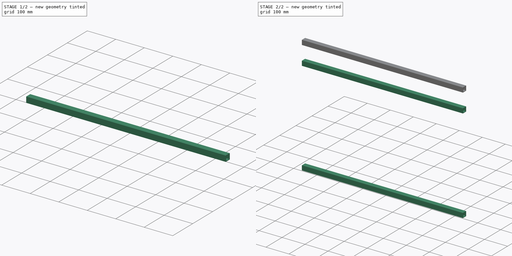
[diagram: build sequence overview — one tinted view per stage of 2, left to right]
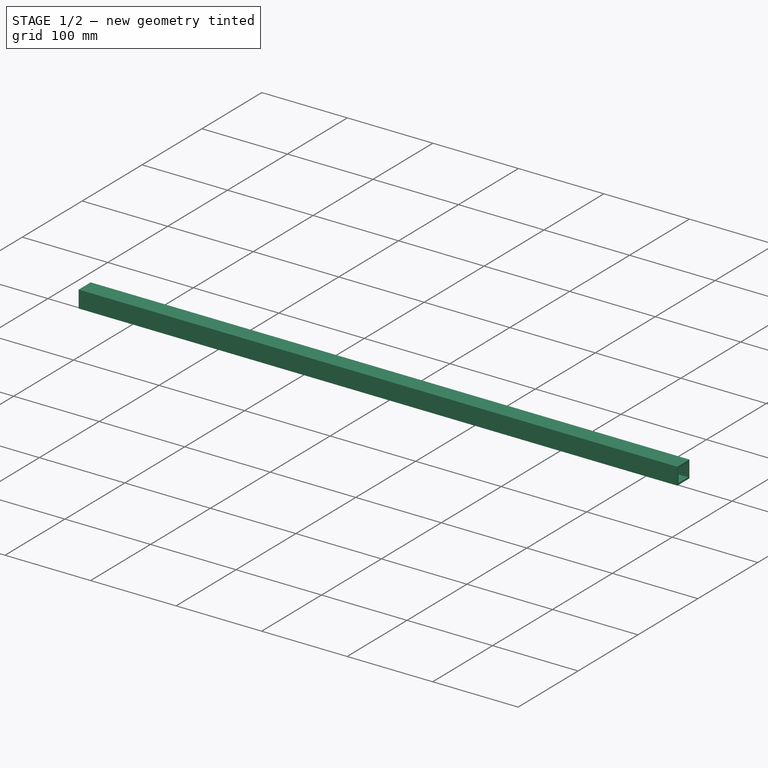
[diagram: stage 1 of 2 — iso view after this stage's code; geometry added in this stage tinted green]
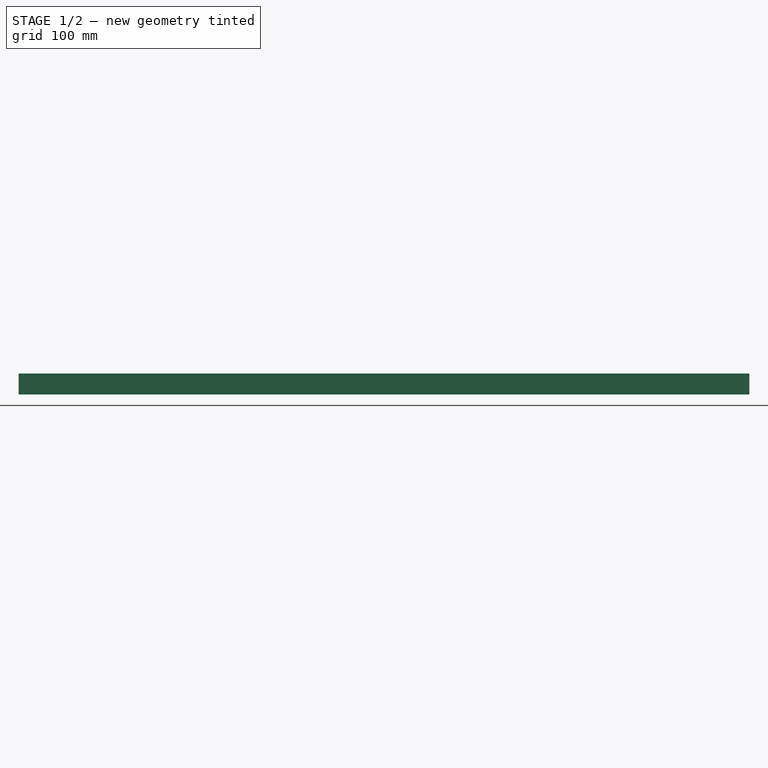
[diagram: stage 1 of 2 — front view after this stage's code; geometry added in this stage tinted green]
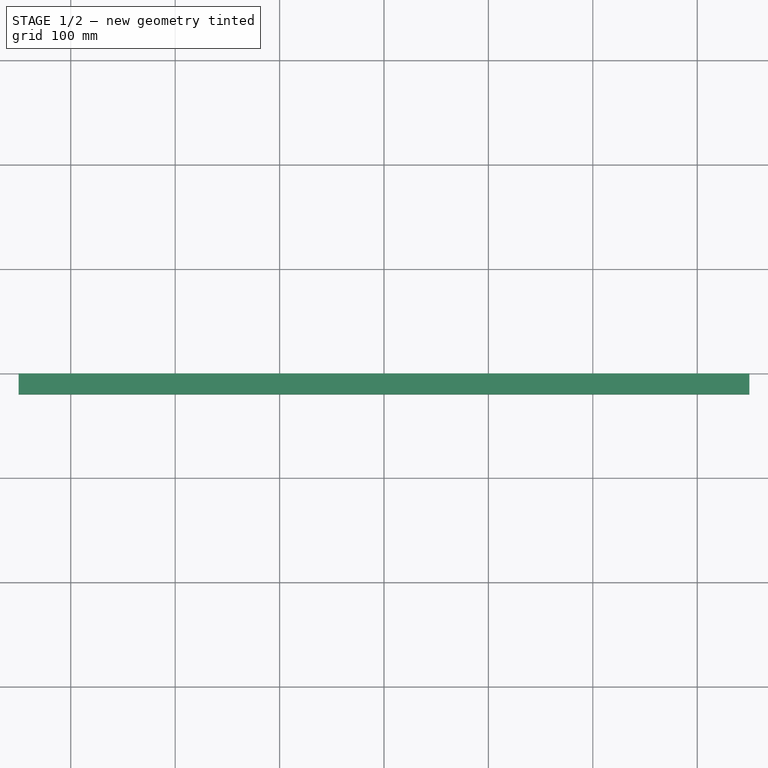
[diagram: stage 1 of 2 — top view after this stage's code; geometry added in this stage tinted green]
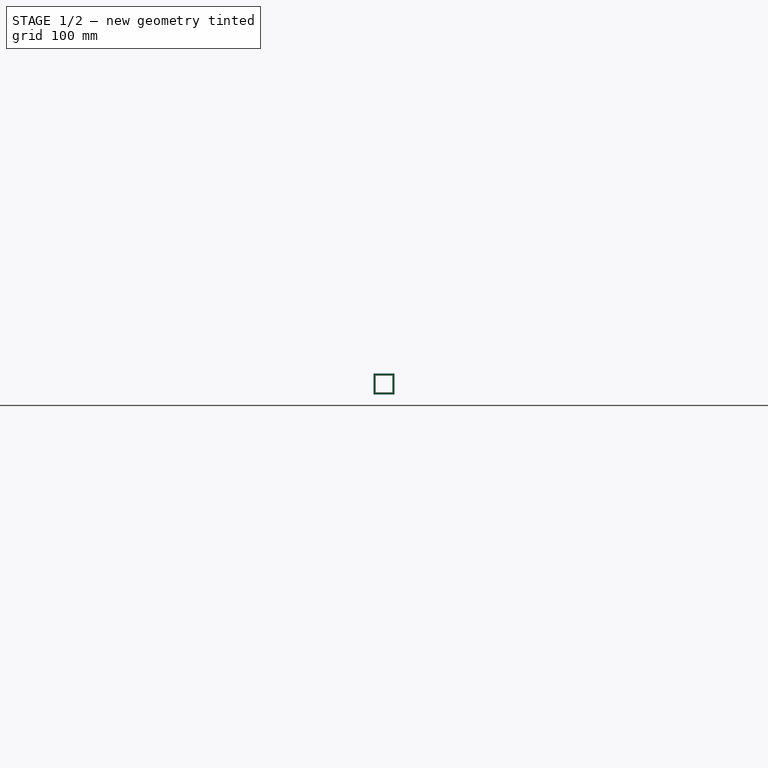
[diagram: stage 1 of 2 — right view after this stage's code; geometry added in this stage tinted green]
FCSTD DOCUMENT  (FreeCAD 0.20R29603 (Git))
Label: Fahrradwohnwagen
License: All rights reserved
LicenseURL: http://en.wikipedia.org/wiki/All_rights_reserved
objects: PartDesign::Body×4, PartDesign::FeatureBase×3, Sketcher::SketchObject×1, PartDesign::Pad×1, App::LinkGroup×1
note: 10 computed .brp shape members not serialized (recipe doc carries the construction recipe); baked Part::Feature solids carry a one-line shape summary decoded from their .brp

FEATURE [Sketcher::SketchObject] Sketch
  FullyConstrained = true
  MapMode = 5
  Placement = pos=(0,0,0) rot=(0.57735,0.57735,0.57735;2.0944rad)
  Support = -> [YZ_Plane002]
  sketch-geometry (8):
    g0: LineSegment StartX=0 StartY=0 StartZ=0 EndX=-20 EndY=0 EndZ=0
    g1: LineSegment StartX=-20 StartY=0 StartZ=0 EndX=-20 EndY=20 EndZ=0
    g2: LineSegment StartX=-20 StartY=20 StartZ=0 EndX=0 EndY=20 EndZ=0
    g3: LineSegment StartX=0 StartY=20 StartZ=0 EndX=0 EndY=0 EndZ=0
    g4: LineSegment StartX=-2 StartY=2 StartZ=0 EndX=-18 EndY=2 EndZ=0
    g5: LineSegment StartX=-18 StartY=2 StartZ=0 EndX=-18 EndY=18 EndZ=0
    g6: LineSegment StartX=-18 StartY=18 StartZ=0 EndX=-2 EndY=18 EndZ=0
    g7: LineSegment StartX=-2 StartY=18 StartZ=0 EndX=-2 EndY=2 EndZ=0
  constraints (23):
    c: Coincident(g0,g1)
    c: Coincident(g1,g2)
    c: Coincident(g2,g3)
    c: Coincident(g3,g0)
    c: Horizontal(g0)
    c: Horizontal(g2)
    c: Vertical(g1)
    c: Vertical(g3)
    c: Coincident(g0,g-1)
    c: Coincident(g4,g5)
    c: Coincident(g5,g6)
    c: Coincident(g6,g7)
    c: Coincident(g7,g4)
    c: Horizontal(g4)
    c: Horizontal(g6)
    c: Vertical(g5)
    c: Vertical(g7)
    c: Distance(g6,g3) = 2
    c: Distance(g2) = 20
    c: Distance(g1) = 20
    c: Distance(g6) = 16
    c: Distance(g5) = 16
    c: Distance(g6,g2) = 2
FEATURE [PartDesign::Pad] Pad
  Direction = (1,-2e-16,3e-16)
  Length = 350
  Length2 = 350
  Placement = pos=(0,0,0) rot=(0.57735,0.57735,0.57735;2.0944rad)
  Profile = -> Sketch
  ReferenceAxis = -> Sketch [N_Axis]
  Refine = true
  Type = 4
FEATURE [PartDesign::Body] Body003  label="Alu Vierkantrohr 20*20*2 längs 003"
  Group = -> [Clone001]
  Origin = -> Origin003
  Tip = -> Clone001
FEATURE [PartDesign::FeatureBase] Clone002
  BaseFeature = -> Body002
  Placement = pos=(0,0,411) rot=(0,0,1;0rad)
FEATURE [PartDesign::Body] Body004  label="Alu Vierkantrohr 20*20*2 längs 004"
  Group = -> [Clone002]
  Origin = -> Origin004
  Tip = -> Clone002
FEATURE [App::LinkGroup] LinkGroup  label="Alu Vierkantrohr 20*20*2 längs "
  ElementList = -> [Body004,Body003,Body,Body002]
  LinkMode = 0
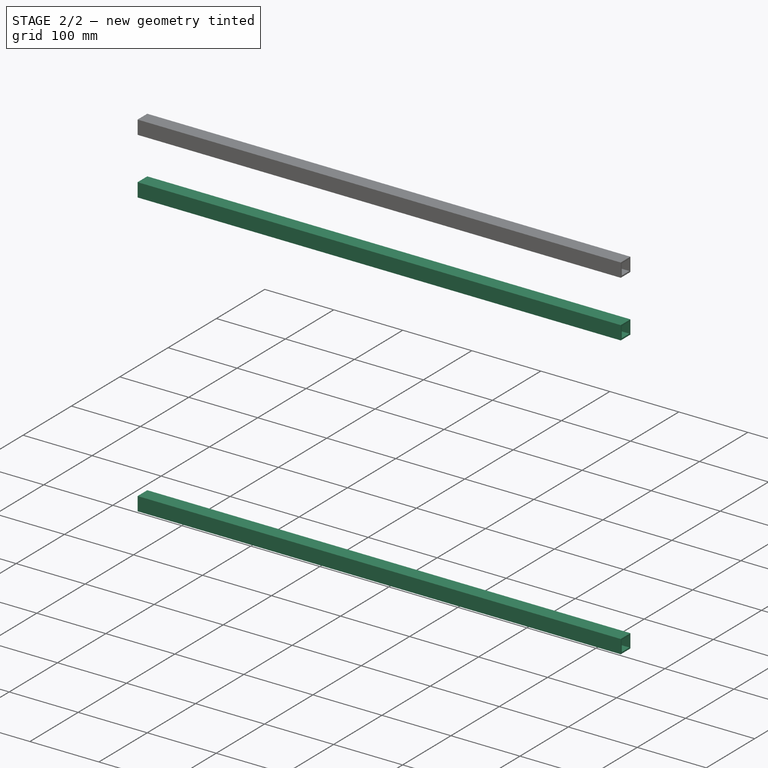
[diagram: stage 2 of 2 — iso view after this stage's code; geometry added in this stage tinted green]
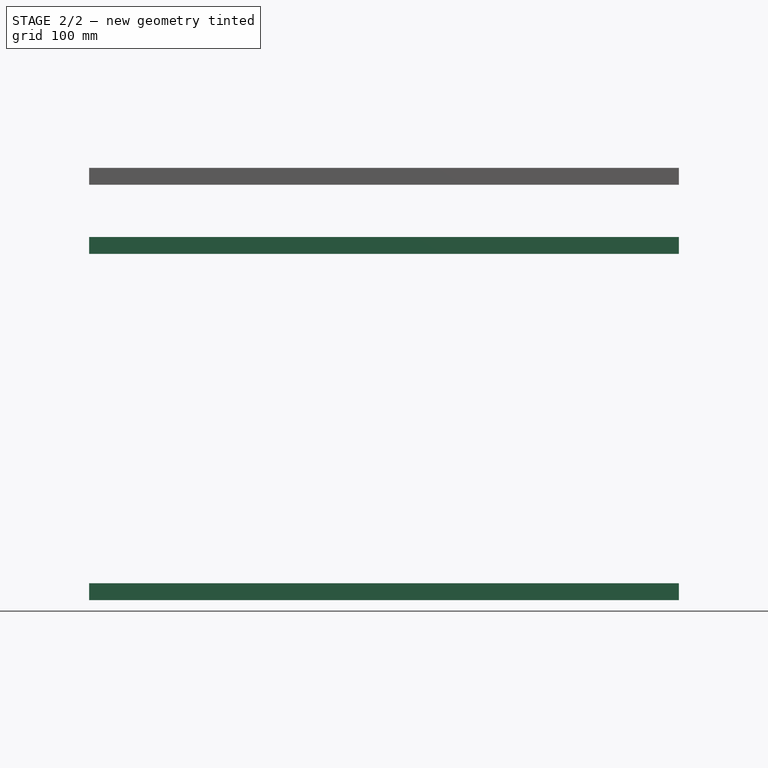
[diagram: stage 2 of 2 — front view after this stage's code; geometry added in this stage tinted green]
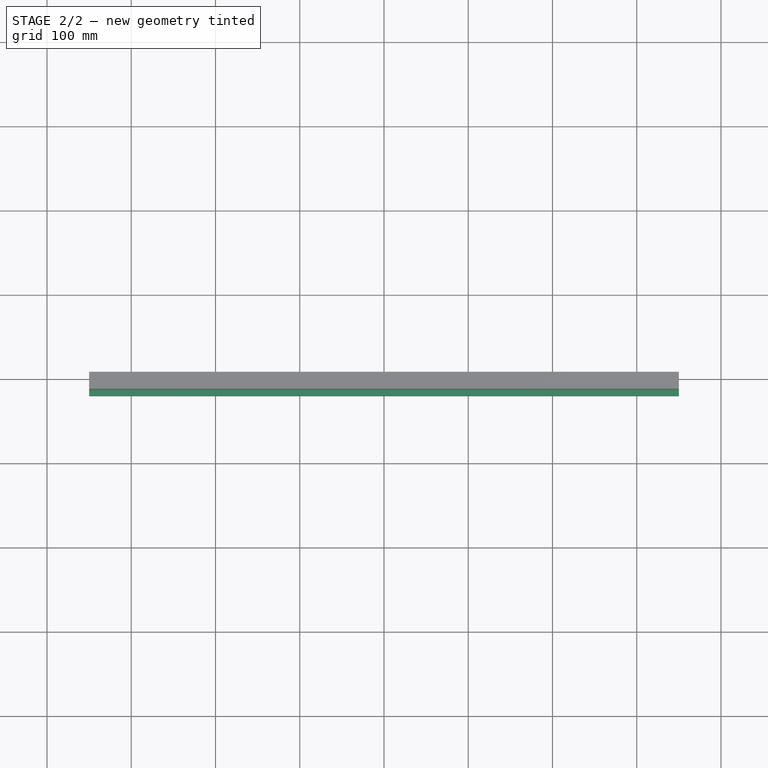
[diagram: stage 2 of 2 — top view after this stage's code; geometry added in this stage tinted green]
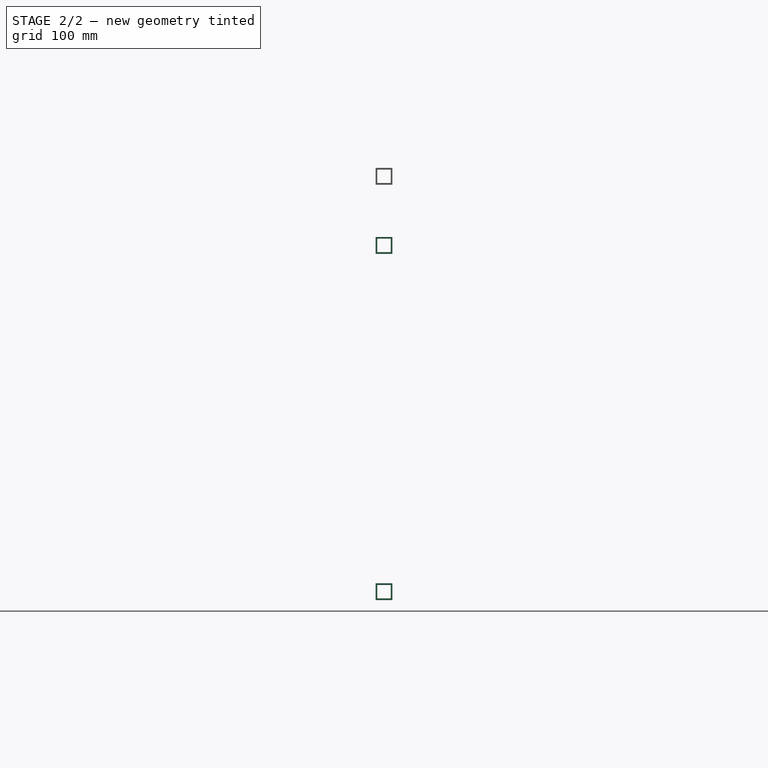
[diagram: stage 2 of 2 — right view after this stage's code; geometry added in this stage tinted green]
FEATURE [PartDesign::Body] Body002  label="Alu Vierkantrohr 20*20*2  längs 001"
  Group = -> [Sketch,Pad]
  Origin = -> Origin002
  Tip = -> Pad
FEATURE [PartDesign::FeatureBase] Clone
  BaseFeature = -> Body002
  Placement = pos=(0,0,329) rot=(0,0,1;0rad)
FEATURE [PartDesign::Body] Body  label="Alu Vierkantrohr 20*20*2 längs 002"
  Group = -> [Clone]
  Origin = -> Origin
  Tip = -> Clone
FEATURE [PartDesign::FeatureBase] Clone001
  BaseFeature = -> Body002
  Placement = pos=(0,0,-82) rot=(0,0,1;0rad)
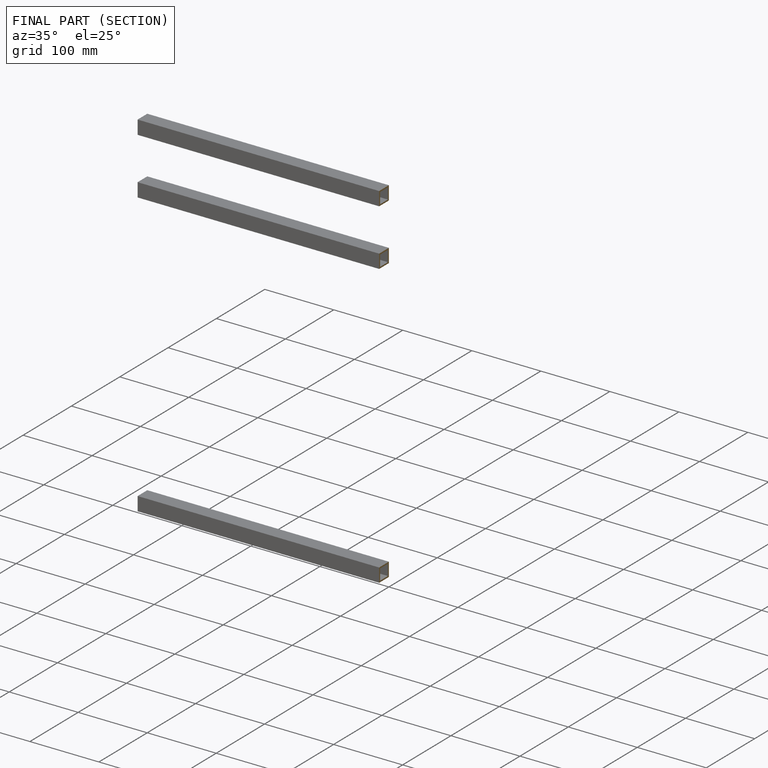
[diagram: finished part — half-section view (interior)]
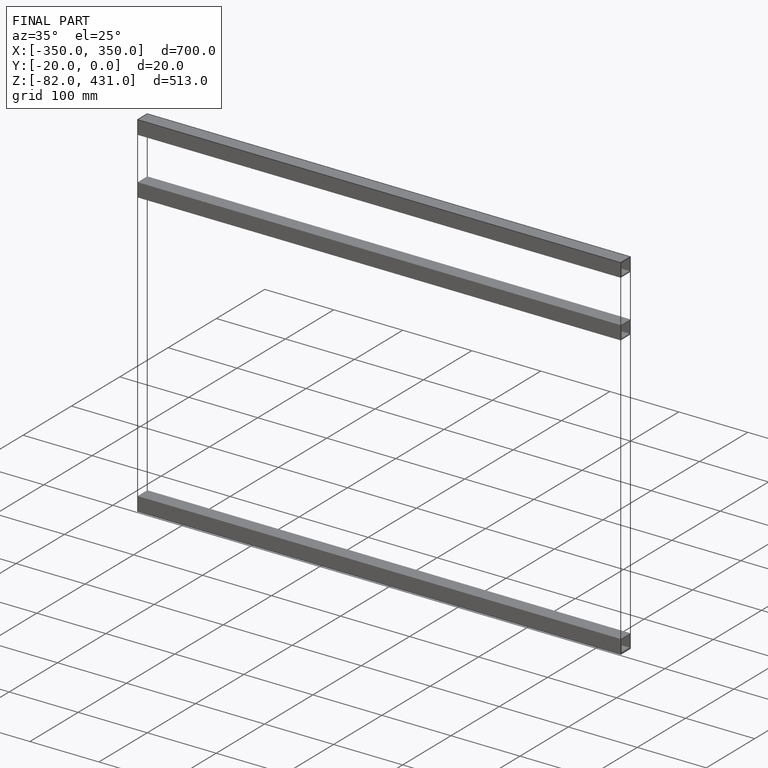
[diagram: finished part — iso view with bounding-box wireframe]
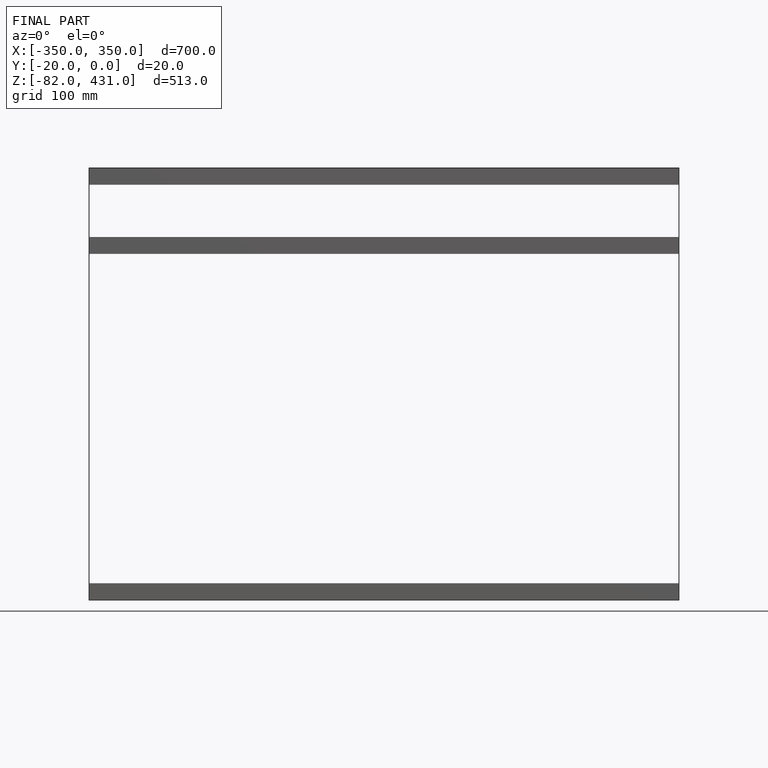
[diagram: finished part — front view with bounding-box wireframe]
